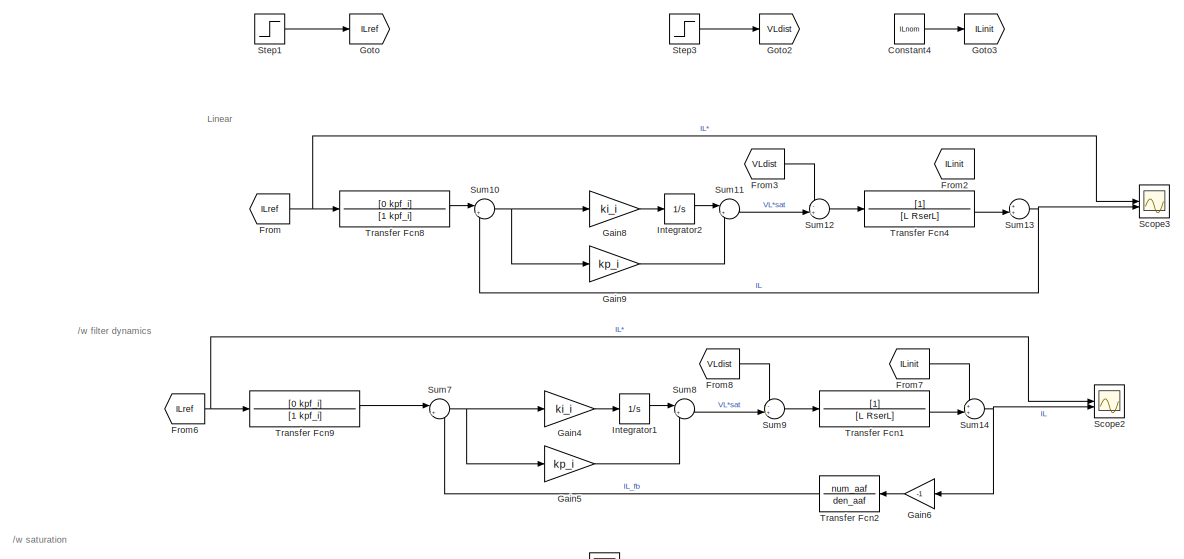
[diagram: root canvas - part 1/4, top left region]
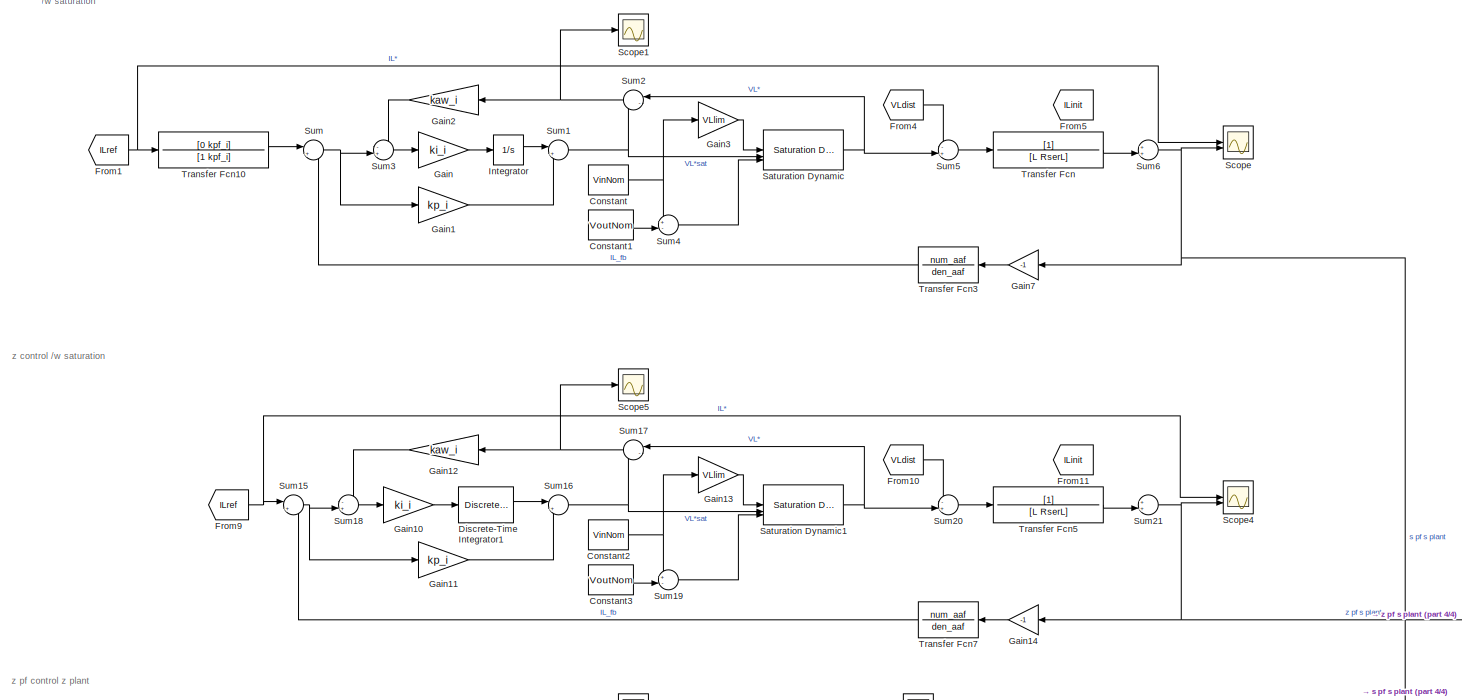
[diagram: root canvas - part 2/4, full width, middle band]
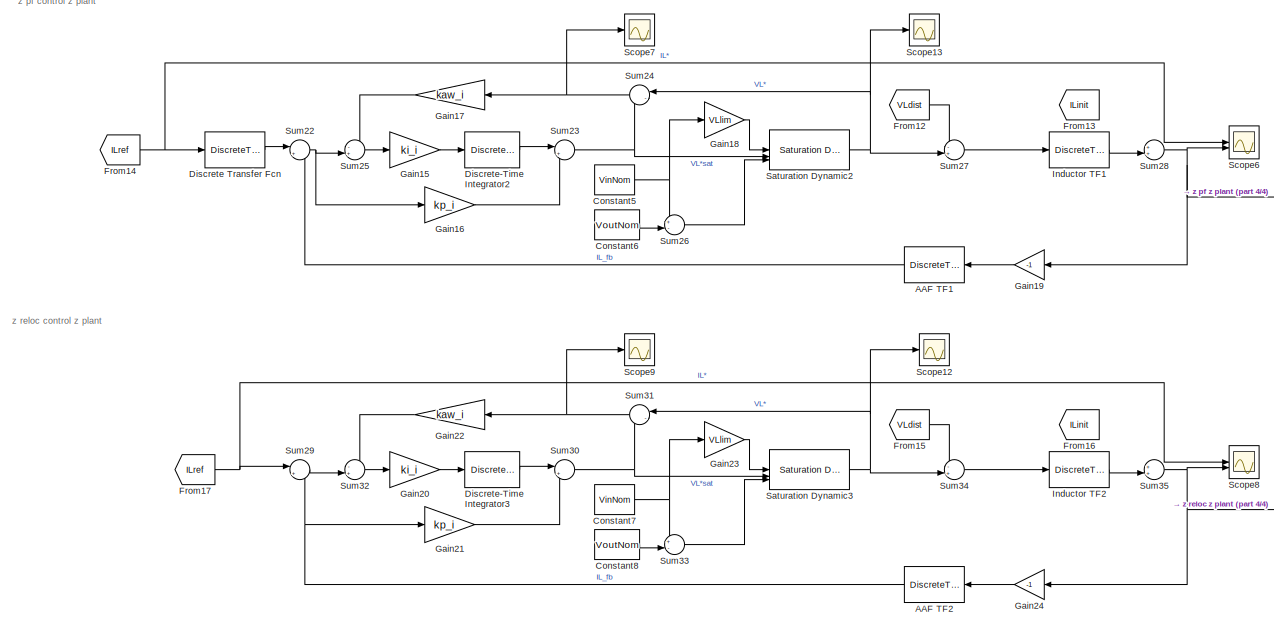
[diagram: root canvas - part 3/4, bottom center region]
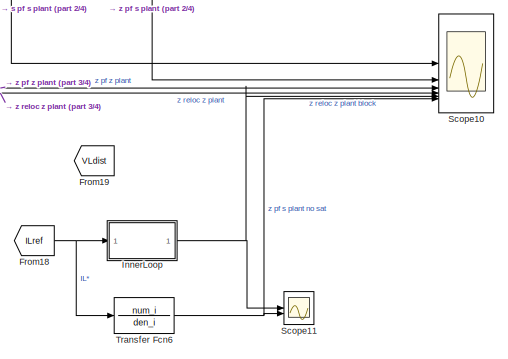
[diagram: root canvas - part 4/4, bottom right region]
MODEL slx_ea5bb810c5c6
KIND model
CONFIG AbsTol = auto
CONFIG EnableMultiTasking = off
CONFIG FixedStep = Tsw
CONFIG MaxStep = auto
CONFIG MinStep = auto
CONFIG RelTol = 1e-3
CONFIG SampleTimeConstraint = Unconstrained
CONFIG SolverName = FixedStepAuto
CONFIG StartTime = 0.0
CONFIG StopTime = Tsim_inLoop
BLOCK [DiscreteTransferFcn] AAF TF1
  Commented = on
  Denominator = zden_aaf
  InputPortMap = u0
  NameLocation = top
  Numerator = znum_aaf
BLOCK [DiscreteTransferFcn] AAF TF2
  Denominator = zden_aaf
  InputPortMap = u0
  NameLocation = top
  Numerator = znum_aaf
BLOCK [Constant] Constant
  Commented = on
  Value = VinNom
BLOCK [Constant] Constant1
  Commented = on
  Value = VoutNom
BLOCK [Constant] Constant2
  Value = VinNom
BLOCK [Constant] Constant3
  Value = VoutNom
BLOCK [Constant] Constant4
  SampleTime = -1
  Value = ILnom
BLOCK [Constant] Constant5
  Commented = on
  Value = VinNom
BLOCK [Constant] Constant6
  Commented = on
  Value = VoutNom
BLOCK [Constant] Constant7
  Value = VinNom
BLOCK [Constant] Constant8
  Value = VoutNom
BLOCK [DiscreteTransferFcn] Discrete Transfer Fcn
  Commented = on
  Denominator = zden_pf_i
  InputPortMap = u0
  Numerator = znum_pf_i
BLOCK [DiscreteIntegrator] Discrete-Time Integrator1
  ICPrevOutput = DiscIntNeverNeededParam
  ICPrevScaledInput = DiscIntNeverNeededParam
  InitialConditionSetting = Auto
  IntegratorMethod = Integration: Trapezoidal
  SampleTime = Tsw
BLOCK [DiscreteIntegrator] Discrete-Time Integrator2
  Commented = on
  ICPrevOutput = DiscIntNeverNeededParam
  ICPrevScaledInput = DiscIntNeverNeededParam
  InitialConditionSetting = Auto
  IntegratorMethod = Integration: Trapezoidal
  SampleTime = Tsw
BLOCK [DiscreteIntegrator] Discrete-Time Integrator3
  ICPrevOutput = DiscIntNeverNeededParam
  ICPrevScaledInput = DiscIntNeverNeededParam
  InitialConditionSetting = Auto
  IntegratorMethod = Integration: Trapezoidal
  SampleTime = Tsw
BLOCK [From] From
  Commented = on
  GotoTag = ILref
BLOCK [From] From1
  Commented = on
  GotoTag = ILref
BLOCK [From] From10
  GotoTag = VLdist
BLOCK [From] From11
  GotoTag = ILinit
BLOCK [From] From12
  Commented = on
  GotoTag = VLdist
BLOCK [From] From13
  Commented = on
  GotoTag = ILinit
BLOCK [From] From14
  Commented = on
  GotoTag = ILref
BLOCK [From] From15
  GotoTag = VLdist
BLOCK [From] From16
  GotoTag = ILinit
BLOCK [From] From17
  GotoTag = ILref
BLOCK [From] From18
  GotoTag = ILref
BLOCK [From] From19
  GotoTag = VLdist
BLOCK [From] From2
  Commented = on
  GotoTag = ILinit
BLOCK [From] From3
  Commented = on
  GotoTag = VLdist
BLOCK [From] From4
  Commented = on
  GotoTag = VLdist
BLOCK [From] From5
  Commented = on
  GotoTag = ILinit
BLOCK [From] From6
  Commented = on
  GotoTag = ILref
BLOCK [From] From7
  Commented = on
  GotoTag = ILinit
BLOCK [From] From8
  Commented = on
  GotoTag = VLdist
BLOCK [From] From9
  GotoTag = ILref
BLOCK [Gain] Gain
  Commented = on
  Gain = ki_i
BLOCK [Gain] Gain1
  Commented = on
  Gain = kp_i
BLOCK [Gain] Gain10
  Gain = ki_i
BLOCK [Gain] Gain11
  Gain = kp_i
BLOCK [Gain] Gain12
  Gain = kaw_i
  NameLocation = top
BLOCK [Gain] Gain13
  Gain = VLlim
BLOCK [Gain] Gain14
  Gain = -1
  NameLocation = top
BLOCK [Gain] Gain15
  Commented = on
  Gain = ki_i
BLOCK [Gain] Gain16
  Commented = on
  Gain = kp_i
BLOCK [Gain] Gain17
  Commented = on
  Gain = kaw_i
  NameLocation = top
BLOCK [Gain] Gain18
  Commented = on
  Gain = VLlim
BLOCK [Gain] Gain19
  Commented = on
  Gain = -1
  NameLocation = top
BLOCK [Gain] Gain2
  Commented = on
  Gain = kaw_i
  NameLocation = top
BLOCK [Gain] Gain20
  Gain = ki_i
BLOCK [Gain] Gain21
  Gain = kp_i
BLOCK [Gain] Gain22
  Gain = kaw_i
  NameLocation = top
BLOCK [Gain] Gain23
  Gain = VLlim
BLOCK [Gain] Gain24
  Gain = -1
  NameLocation = top
BLOCK [Gain] Gain3
  Commented = on
  Gain = VLlim
BLOCK [Gain] Gain4
  Commented = on
  Gain = ki_i
BLOCK [Gain] Gain5
  Commented = on
  Gain = kp_i
BLOCK [Gain] Gain6
  Commented = on
  Gain = -1
  NameLocation = top
BLOCK [Gain] Gain7
  Commented = on
  Gain = -1
  NameLocation = top
BLOCK [Gain] Gain8
  Commented = on
  Gain = ki_i
BLOCK [Gain] Gain9
  Commented = on
  Gain = kp_i
BLOCK [Goto] Goto
  GotoTag = ILref
BLOCK [Goto] Goto2
  GotoTag = VLdist
BLOCK [Goto] Goto3
  GotoTag = ILinit
BLOCK [DiscreteTransferFcn] Inductor TF1
  Commented = on
  Denominator = zden_plant_i
  InputPortMap = u0
  Numerator = znum_plant_i
BLOCK [DiscreteTransferFcn] Inductor TF2
  Denominator = zden_plant_i
  InputPortMap = u0
  Numerator = znum_plant_i
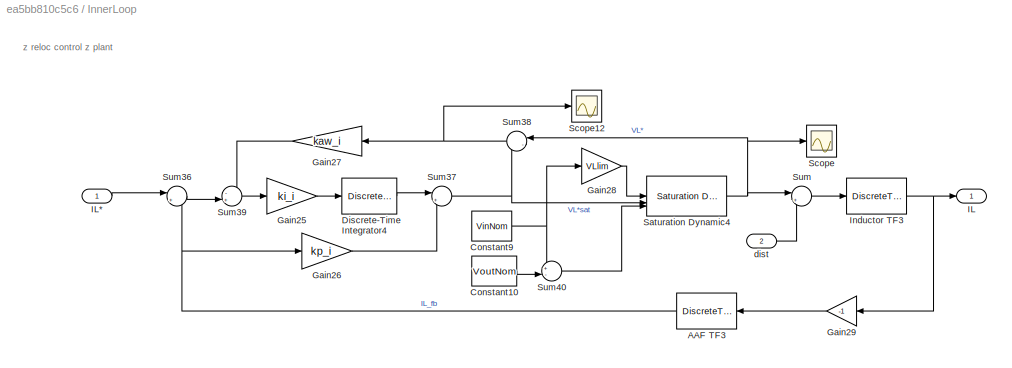
BLOCK [SubSystem] InnerLoop
  Commented = on
  PortSchema = {"entries":[{"content":{"sides":[{"content":{"connectorIds":["In1"]},"type":"ConnectorPlacement.EquallySpacedRectSide","uuid":"ea8557f0-2829-4e37-b4b3-547e1edede5f"},{"content":{"connectorIds":["Out1"],"side":"RIGHT"},"type":"ConnectorPlacement.EquallySpacedRectSide","uuid":"1f5eaae7-1846-4e2b-9076-d6e50ab32c3c"},{"content":{"connectorIds":["In2"],"side":"TOP"},"type":"ConnectorPlacement.EquallySp...<+371ch>
BLOCK [DiscreteTransferFcn] InnerLoop/AAF TF3
  Denominator = zden_aaf
  InputPortMap = u0
  NameLocation = top
  Numerator = znum_aaf
BLOCK [Constant] InnerLoop/Constant10
  Value = VoutNom
BLOCK [Constant] InnerLoop/Constant9
  Value = VinNom
BLOCK [DiscreteIntegrator] InnerLoop/Discrete-Time Integrator4
  ICPrevOutput = DiscIntNeverNeededParam
  ICPrevScaledInput = DiscIntNeverNeededParam
  InitialConditionSetting = Auto
  IntegratorMethod = Integration: Trapezoidal
  SampleTime = Tsw
BLOCK [Gain] InnerLoop/Gain25
  Gain = ki_i
BLOCK [Gain] InnerLoop/Gain26
  Gain = kp_i
BLOCK [Gain] InnerLoop/Gain27
  Gain = kaw_i
  NameLocation = top
BLOCK [Gain] InnerLoop/Gain28
  Gain = VLlim
BLOCK [Gain] InnerLoop/Gain29
  Gain = -1
  NameLocation = top
BLOCK [Outport] InnerLoop/IL
BLOCK [Inport] InnerLoop/IL*
BLOCK [DiscreteTransferFcn] InnerLoop/Inductor TF3
  Denominator = zden_plant_i
  InputPortMap = u0
  Numerator = znum_plant_i
BLOCK [Reference] InnerLoop/Saturation Dynamic4  REF=simulink/Discontinuities/Saturation
Dynamic
  SourceBlock = simulink/Discontinuities/Saturation\nDynamic
  SourceType = Saturation Dynamic
BLOCK [Scope] InnerLoop/Scope
  Floating = off
  NumInputPorts = 1
  ScopeSpecificationString = Simulink.scopes.TimeScopeBlockCfg('CurrentConfiguration', extmgr.ConfigurationSet(extmgr.Configuration('Core','General UI',true),extmgr.Configuration('Core','Source UI',true),extmgr.Configuration('Sources','WiredSimulink',true,'DataLoggingVariableName','ScopeData11'),extmgr.Configuration('Visuals','Time Domain',true,'SerializedDisplays',{struct('MinYLimReal','-2','MaxYLimReal','9','YLabelReal','',...<+1474ch>
BLOCK [Scope] InnerLoop/Scope12
  Floating = off
  NumInputPorts = 1
  ScopeSpecificationString = Simulink.scopes.TimeScopeBlockCfg('CurrentConfiguration', extmgr.ConfigurationSet(extmgr.Configuration('Core','General UI',true),extmgr.Configuration('Core','Source UI',true),extmgr.Configuration('Sources','WiredSimulink',true,'DataLoggingVariableName','ScopeData9'),extmgr.Configuration('Visuals','Time Domain',true,'SerializedDisplays',{struct('MinYLimReal','-0.000000000000000011','MaxYLimReal','0...<+1557ch>
BLOCK [Sum] InnerLoop/Sum
  Inputs = |+-
BLOCK [Sum] InnerLoop/Sum36
  Inputs = |+-
BLOCK [Sum] InnerLoop/Sum37
  Inputs = |+-
BLOCK [Sum] InnerLoop/Sum38
  Inputs = |-+
  NameLocation = top
BLOCK [Sum] InnerLoop/Sum39
  Inputs = -+|
BLOCK [Sum] InnerLoop/Sum40
  Inputs = +-|
BLOCK [Inport] InnerLoop/dist
  Port = 2
BLOCK [Integrator] Integrator
  Commented = on
BLOCK [Integrator] Integrator1
  Commented = on
BLOCK [Integrator] Integrator2
  Commented = on
BLOCK [Reference] Saturation Dynamic  REF=simulink/Discontinuities/Saturation
Dynamic
  Commented = on
  SourceBlock = simulink/Discontinuities/Saturation\nDynamic
  SourceType = Saturation Dynamic
BLOCK [Reference] Saturation Dynamic1  REF=simulink/Discontinuities/Saturation
Dynamic
  SourceBlock = simulink/Discontinuities/Saturation\nDynamic
  SourceType = Saturation Dynamic
BLOCK [Reference] Saturation Dynamic2  REF=simulink/Discontinuities/Saturation
Dynamic
  Commented = on
  SourceBlock = simulink/Discontinuities/Saturation\nDynamic
  SourceType = Saturation Dynamic
BLOCK [Reference] Saturation Dynamic3  REF=simulink/Discontinuities/Saturation
Dynamic
  SourceBlock = simulink/Discontinuities/Saturation\nDynamic
  SourceType = Saturation Dynamic
BLOCK [Scope] Scope
  Commented = on
  Floating = off
  NumInputPorts = 2
  ScopeSpecificationString = Simulink.scopes.TimeScopeBlockCfg('CurrentConfiguration', extmgr.ConfigurationSet(extmgr.Configuration('Core','General UI',true),extmgr.Configuration('Core','Source UI',true),extmgr.Configuration('Sources','WiredSimulink',true),extmgr.Configuration('Visuals','Time Domain',true,'SerializedDisplays',{struct('MinYLimReal','-3.81301','MaxYLimReal','12.88544','YLabelReal','','MinYLimMag','0.00000','Max...<+1403ch>
BLOCK [Scope] Scope1
  Commented = on
  Floating = off
  NumInputPorts = 1
  ScopeSpecificationString = Simulink.scopes.TimeScopeBlockCfg('CurrentConfiguration', extmgr.ConfigurationSet(extmgr.Configuration('Core','General UI',true),extmgr.Configuration('Core','Source UI',true),extmgr.Configuration('Sources','WiredSimulink',true,'DataLoggingVariableName','ScopeData1'),extmgr.Configuration('Visuals','Time Domain',true,'SerializedDisplays',{struct('MinYLimReal','-1.00000','MaxYLimReal','1.00000','YLab...<+1363ch>
BLOCK [Scope] Scope10
  Floating = off
  NumInputPorts = 6
  ScopeSpecificationString = Simulink.scopes.TimeScopeBlockCfg('CurrentConfiguration', extmgr.ConfigurationSet(extmgr.Configuration('Core','General UI',true),extmgr.Configuration('Core','Source UI',true),extmgr.Configuration('Sources','WiredSimulink',true,'DataLoggingVariableName','ScopeData7'),extmgr.Configuration('Visuals','Time Domain',true,'SerializedDisplays',{struct('MinYLimReal','-0.88612','MaxYLimReal','7.97505','YLab...<+1720ch>
BLOCK [Scope] Scope11
  Floating = off
  NumInputPorts = 2
  ScopeSpecificationString = Simulink.scopes.TimeScopeBlockCfg('CurrentConfiguration', extmgr.ConfigurationSet(extmgr.Configuration('Core','General UI',true),extmgr.Configuration('Core','Source UI',true),extmgr.Configuration('Sources','WiredSimulink',true,'DataLoggingVariableName','ScopeData8'),extmgr.Configuration('Visuals','Time Domain',true,'SerializedDisplays',{struct('MinYLimReal','-0.75084','MaxYLimReal','6.75757','YLab...<+1518ch>
BLOCK [Scope] Scope12
  Floating = off
  NumInputPorts = 1
  ScopeSpecificationString = Simulink.scopes.TimeScopeBlockCfg('CurrentConfiguration', extmgr.ConfigurationSet(extmgr.Configuration('Core','General UI',true),extmgr.Configuration('Core','Source UI',true),extmgr.Configuration('Sources','WiredSimulink',true,'DataLoggingVariableName','ScopeData10'),extmgr.Configuration('Visuals','Time Domain',true,'SerializedDisplays',{struct('MinYLimReal','-2','MaxYLimReal','9','YLabelReal','',...<+1471ch>
BLOCK [Scope] Scope13
  Commented = on
  Floating = off
  NumInputPorts = 1
  ScopeSpecificationString = Simulink.scopes.TimeScopeBlockCfg('CurrentConfiguration', extmgr.ConfigurationSet(extmgr.Configuration('Core','General UI',true),extmgr.Configuration('Core','Source UI',true),extmgr.Configuration('Sources','WiredSimulink',true,'DataLoggingVariableName','ScopeData12'),extmgr.Configuration('Visuals','Time Domain',true,'SerializedDisplays',{struct('MinYLimReal','-1.00000','MaxYLimReal','1.00000','YLa...<+1364ch>
BLOCK [Scope] Scope2
  Commented = on
  Floating = off
  NumInputPorts = 2
  ScopeSpecificationString = Simulink.scopes.TimeScopeBlockCfg('CurrentConfiguration', extmgr.ConfigurationSet(extmgr.Configuration('Core','General UI',true),extmgr.Configuration('Core','Source UI',true),extmgr.Configuration('Sources','WiredSimulink',true,'DataLoggingVariableName','ScopeData1'),extmgr.Configuration('Visuals','Time Domain',true,'SerializedDisplays',{struct('MinYLimReal','-4.45388','MaxYLimReal','13.22559','YLa...<+1442ch>
BLOCK [Scope] Scope3
  Commented = on
  Floating = off
  NumInputPorts = 2
  ScopeSpecificationString = Simulink.scopes.TimeScopeBlockCfg('CurrentConfiguration', extmgr.ConfigurationSet(extmgr.Configuration('Core','General UI',true),extmgr.Configuration('Core','Source UI',true),extmgr.Configuration('Sources','WiredSimulink',true,'DataLoggingVariableName','ScopeData2'),extmgr.Configuration('Visuals','Time Domain',true,'SerializedDisplays',{struct('MinYLimReal','-0.65629','MaxYLimReal','5.90662','YLab...<+1823ch>
BLOCK [Scope] Scope4
  Floating = off
  NumInputPorts = 2
  ScopeSpecificationString = Simulink.scopes.TimeScopeBlockCfg('CurrentConfiguration', extmgr.ConfigurationSet(extmgr.Configuration('Core','General UI',true),extmgr.Configuration('Core','Source UI',true),extmgr.Configuration('Sources','WiredSimulink',true,'DataLoggingVariableName','ScopeData1'),extmgr.Configuration('Visuals','Time Domain',true,'SerializedDisplays',{struct('MinYLimReal','-0.88618','MaxYLimReal','7.97564','YLab...<+1536ch>
BLOCK [Scope] Scope5
  Floating = off
  NumInputPorts = 1
  ScopeSpecificationString = Simulink.scopes.TimeScopeBlockCfg('CurrentConfiguration', extmgr.ConfigurationSet(extmgr.Configuration('Core','General UI',true),extmgr.Configuration('Core','Source UI',true),extmgr.Configuration('Sources','WiredSimulink',true,'DataLoggingVariableName','ScopeData2'),extmgr.Configuration('Visuals','Time Domain',true,'SerializedDisplays',{struct('MinYLimReal','-1.00000','MaxYLimReal','1.00000','YLab...<+1363ch>
BLOCK [Scope] Scope6
  Commented = on
  Floating = off
  NumInputPorts = 2
  ScopeSpecificationString = Simulink.scopes.TimeScopeBlockCfg('CurrentConfiguration', extmgr.ConfigurationSet(extmgr.Configuration('Core','General UI',true),extmgr.Configuration('Core','Source UI',true),extmgr.Configuration('Sources','WiredSimulink',true,'DataLoggingVariableName','ScopeData3'),extmgr.Configuration('Visuals','Time Domain',true,'SerializedDisplays',{struct('MinYLimReal','-0.625','MaxYLimReal','5.625','YLabelRe...<+1525ch>
BLOCK [Scope] Scope7
  Commented = on
  Floating = off
  NumInputPorts = 1
  ScopeSpecificationString = Simulink.scopes.TimeScopeBlockCfg('CurrentConfiguration', extmgr.ConfigurationSet(extmgr.Configuration('Core','General UI',true),extmgr.Configuration('Core','Source UI',true),extmgr.Configuration('Sources','WiredSimulink',true,'DataLoggingVariableName','ScopeData4'),extmgr.Configuration('Visuals','Time Domain',true,'SerializedDisplays',{struct('MinYLimReal','-1.00000','MaxYLimReal','1.00000','YLab...<+1363ch>
BLOCK [Scope] Scope8
  Floating = off
  NumInputPorts = 2
  ScopeSpecificationString = Simulink.scopes.TimeScopeBlockCfg('CurrentConfiguration', extmgr.ConfigurationSet(extmgr.Configuration('Core','General UI',true),extmgr.Configuration('Core','Source UI',true),extmgr.Configuration('Sources','WiredSimulink',true,'DataLoggingVariableName','ScopeData5'),extmgr.Configuration('Visuals','Time Domain',true,'SerializedDisplays',{struct('MinYLimReal','-0.625','MaxYLimReal','5.625','YLabelRe...<+1515ch>
BLOCK [Scope] Scope9
  Floating = off
  NumInputPorts = 1
  ScopeSpecificationString = Simulink.scopes.TimeScopeBlockCfg('CurrentConfiguration', extmgr.ConfigurationSet(extmgr.Configuration('Core','General UI',true),extmgr.Configuration('Core','Source UI',true),extmgr.Configuration('Sources','WiredSimulink',true,'DataLoggingVariableName','ScopeData6'),extmgr.Configuration('Visuals','Time Domain',true,'SerializedDisplays',{struct('MinYLimReal','-0.000000000000000009','MaxYLimReal','0...<+1557ch>
BLOCK [Step] Step1
  After = ILnom
  Time = Tsim_inLoop/4
BLOCK [Step] Step3
  After = VinNom/4
  Time = Tsim_inLoop/2
BLOCK [Sum] Sum
  Commented = on
  Inputs = |+-
BLOCK [Sum] Sum1
  Commented = on
  Inputs = |++
BLOCK [Sum] Sum10
  Commented = on
  Inputs = |+-
BLOCK [Sum] Sum11
  Commented = on
  Inputs = |++
BLOCK [Sum] Sum12
  Commented = on
  Inputs = -+|
BLOCK [Sum] Sum13
  Commented = on
  Inputs = ++|
BLOCK [Sum] Sum14
  Commented = on
  Inputs = ++|
BLOCK [Sum] Sum15
  Inputs = |+-
BLOCK [Sum] Sum16
  Inputs = |++
BLOCK [Sum] Sum17
  Inputs = |-+
  NameLocation = top
BLOCK [Sum] Sum18
  Inputs = -+|
BLOCK [Sum] Sum19
  Inputs = +-|
BLOCK [Sum] Sum2
  Commented = on
  Inputs = |-+
  NameLocation = top
BLOCK [Sum] Sum20
  Inputs = -+|
BLOCK [Sum] Sum21
  Inputs = ++|
BLOCK [Sum] Sum22
  Commented = on
  Inputs = |+-
BLOCK [Sum] Sum23
  Commented = on
  Inputs = |++
BLOCK [Sum] Sum24
  Commented = on
  Inputs = |-+
  NameLocation = top
BLOCK [Sum] Sum25
  Commented = on
  Inputs = -+|
BLOCK [Sum] Sum26
  Commented = on
  Inputs = +-|
BLOCK [Sum] Sum27
  Commented = on
  Inputs = -+|
BLOCK [Sum] Sum28
  Commented = on
  Inputs = ++|
BLOCK [Sum] Sum29
  Inputs = |+-
BLOCK [Sum] Sum3
  Commented = on
  Inputs = -+|
BLOCK [Sum] Sum30
  Inputs = |+-
BLOCK [Sum] Sum31
  Inputs = |-+
  NameLocation = top
BLOCK [Sum] Sum32
  Inputs = -+|
BLOCK [Sum] Sum33
  Inputs = +-|
BLOCK [Sum] Sum34
  Inputs = -+|
BLOCK [Sum] Sum35
  Inputs = ++|
BLOCK [Sum] Sum4
  Commented = on
  Inputs = +-|
BLOCK [Sum] Sum5
  Commented = on
  Inputs = -+|
BLOCK [Sum] Sum6
  Commented = on
  Inputs = ++|
BLOCK [Sum] Sum7
  Commented = on
  Inputs = |+-
BLOCK [Sum] Sum8
  Commented = on
  Inputs = |++
BLOCK [Sum] Sum9
  Commented = on
  Inputs = -+|
BLOCK [TransferFcn] Transfer Fcn
  Commented = on
  Denominator = [L RserL]
BLOCK [TransferFcn] Transfer Fcn1
  Commented = on
  Denominator = [L RserL]
BLOCK [TransferFcn] Transfer Fcn10
  Commented = on
  Denominator = [1 kpf_i]
  Numerator = [0 kpf_i]
BLOCK [TransferFcn] Transfer Fcn2
  Commented = on
  Denominator = den_aaf
  NameLocation = top
  Numerator = num_aaf
BLOCK [TransferFcn] Transfer Fcn3
  Commented = on
  Denominator = den_aaf
  NameLocation = top
  Numerator = num_aaf
BLOCK [TransferFcn] Transfer Fcn4
  Commented = on
  Denominator = [L RserL]
BLOCK [TransferFcn] Transfer Fcn5
  Denominator = [L RserL]
BLOCK [TransferFcn] Transfer Fcn6
  Commented = on
  Denominator = den_i
  Numerator = num_i
BLOCK [TransferFcn] Transfer Fcn7
  Denominator = den_aaf
  NameLocation = top
  Numerator = num_aaf
BLOCK [TransferFcn] Transfer Fcn8
  Commented = on
  Denominator = [1 kpf_i]
  Numerator = [0 kpf_i]
BLOCK [TransferFcn] Transfer Fcn9
  Commented = on
  Denominator = [1 kpf_i]
  Numerator = [0 kpf_i]
ANNOTATION (root): /w filter dynamics
ANNOTATION (root): /w saturation
ANNOTATION (root): Linear
ANNOTATION (root): z control /w saturation
ANNOTATION (root): z pf control z plant
ANNOTATION (root): z reloc control z plant
ANNOTATION InnerLoop: z reloc control z plant
LINE AAF TF1:1 -> Sum22:2
NET AAF TF2:1 -> Gain21:1, Sum29:2
LINE Constant1:1 -> Sum4:2
NET Constant2:1 -> Gain13:1, Sum19:1
LINE Constant3:1 -> Sum19:2
LINE Constant4:1 -> Goto3:1
NET Constant5:1 -> Gain18:1, Sum26:1
LINE Constant6:1 -> Sum26:2
NET Constant7:1 -> Gain23:1, Sum33:1
LINE Constant8:1 -> Sum33:2
NET Constant:1 -> Gain3:1, Sum4:1
LINE Discrete Transfer Fcn:1 -> Sum22:1
LINE Discrete-Time Integrator1:1 -> Sum16:1
LINE Discrete-Time Integrator2:1 -> Sum23:1
LINE Discrete-Time Integrator3:1 -> Sum30:1
LINE From10:1 -> Sum20:1
LINE From12:1 -> Sum27:1
NET From14:1 -> Discrete Transfer Fcn:1, Scope6:1
LINE From15:1 -> Sum34:1
NET From17:1 -> Scope8:1, Sum29:1
NET From18:1 -> InnerLoop:1, Transfer Fcn6:1
NET From1:1 -> Scope:1, Transfer Fcn10:1
LINE From3:1 -> Sum12:1
LINE From4:1 -> Sum5:1
NET From6:1 -> Scope2:1, Transfer Fcn9:1
LINE From7:1 -> Sum14:1
LINE From8:1 -> Sum9:1
NET From9:1 -> Scope4:1, Sum15:1
NET From:1 -> Scope3:1, Transfer Fcn8:1
LINE Gain10:1 -> Discrete-Time Integrator1:1
LINE Gain11:1 -> Sum16:2
LINE Gain12:1 -> Sum18:1
LINE Gain13:1 -> Saturation Dynamic1:1
LINE Gain14:1 -> Transfer Fcn7:1
LINE Gain15:1 -> Discrete-Time Integrator2:1
LINE Gain16:1 -> Sum23:2
LINE Gain17:1 -> Sum25:1
LINE Gain18:1 -> Saturation Dynamic2:1
LINE Gain19:1 -> AAF TF1:1
LINE Gain1:1 -> Sum1:2
LINE Gain20:1 -> Discrete-Time Integrator3:1
LINE Gain21:1 -> Sum30:2
LINE Gain22:1 -> Sum32:1
LINE Gain23:1 -> Saturation Dynamic3:1
LINE Gain24:1 -> AAF TF2:1
LINE Gain2:1 -> Sum3:1
LINE Gain3:1 -> Saturation Dynamic:1
LINE Gain4:1 -> Integrator1:1
LINE Gain5:1 -> Sum8:2
LINE Gain6:1 -> Transfer Fcn2:1
LINE Gain7:1 -> Transfer Fcn3:1
LINE Gain8:1 -> Integrator2:1
LINE Gain9:1 -> Sum11:2
LINE Gain:1 -> Integrator:1
LINE Inductor TF1:1 -> Sum28:2
LINE Inductor TF2:1 -> Sum35:2
NET InnerLoop/AAF TF3:1 -> InnerLoop/Gain26:1, InnerLoop/Sum36:2
LINE InnerLoop/Constant10:1 -> InnerLoop/Sum40:2
NET InnerLoop/Constant9:1 -> InnerLoop/Gain28:1, InnerLoop/Sum40:1
LINE InnerLoop/Discrete-Time Integrator4:1 -> InnerLoop/Sum37:1
LINE InnerLoop/Gain25:1 -> InnerLoop/Discrete-Time Integrator4:1
LINE InnerLoop/Gain26:1 -> InnerLoop/Sum37:2
LINE InnerLoop/Gain27:1 -> InnerLoop/Sum39:1
LINE InnerLoop/Gain28:1 -> InnerLoop/Saturation Dynamic4:1
LINE InnerLoop/Gain29:1 -> InnerLoop/AAF TF3:1
LINE InnerLoop/IL*:1 -> InnerLoop/Sum36:1
NET InnerLoop/Inductor TF3:1 -> InnerLoop/Gain29:1, InnerLoop/IL:1
NET InnerLoop/Saturation Dynamic4:1 -> InnerLoop/Scope:1, InnerLoop/Sum38:1, InnerLoop/Sum:1
LINE InnerLoop/Sum36:1 -> InnerLoop/Sum39:2
NET InnerLoop/Sum37:1 -> InnerLoop/Saturation Dynamic4:2, InnerLoop/Sum38:2
NET InnerLoop/Sum38:1 -> InnerLoop/Gain27:1, InnerLoop/Scope12:1
LINE InnerLoop/Sum39:1 -> InnerLoop/Gain25:1
LINE InnerLoop/Sum40:1 -> InnerLoop/Saturation Dynamic4:3
LINE InnerLoop/Sum:1 -> InnerLoop/Inductor TF3:1
LINE InnerLoop/dist:1 -> InnerLoop/Sum:2
NET InnerLoop:1 -> Scope10:5, Scope11:1
LINE Integrator1:1 -> Sum8:1
LINE Integrator2:1 -> Sum11:1
LINE Integrator:1 -> Sum1:1
NET Saturation Dynamic1:1 -> Sum17:1, Sum20:2
NET Saturation Dynamic2:1 -> Scope13:1, Sum24:1, Sum27:2
NET Saturation Dynamic3:1 -> Scope12:1, Sum31:1, Sum34:2
NET Saturation Dynamic:1 -> Sum2:1, Sum5:2
LINE Step1:1 -> Goto:1
LINE Step3:1 -> Goto2:1
NET Sum10:1 -> Gain8:1, Gain9:1
LINE Sum11:1 -> Sum12:2
LINE Sum12:1 -> Transfer Fcn4:1
NET Sum13:1 -> Scope3:2, Sum10:2
NET Sum14:1 -> Gain6:1, Scope2:2
NET Sum15:1 -> Gain11:1, Sum18:2
NET Sum16:1 -> Saturation Dynamic1:2, Sum17:2
NET Sum17:1 -> Gain12:1, Scope5:1
LINE Sum18:1 -> Gain10:1
LINE Sum19:1 -> Saturation Dynamic1:3
NET Sum1:1 -> Saturation Dynamic:2, Sum2:2
LINE Sum20:1 -> Transfer Fcn5:1
NET Sum21:1 -> Gain14:1, Scope10:2, Scope4:2
NET Sum22:1 -> Gain16:1, Sum25:2
NET Sum23:1 -> Saturation Dynamic2:2, Sum24:2
NET Sum24:1 -> Gain17:1, Scope7:1
LINE Sum25:1 -> Gain15:1
LINE Sum26:1 -> Saturation Dynamic2:3
LINE Sum27:1 -> Inductor TF1:1
NET Sum28:1 -> Gain19:1, Scope10:3, Scope6:2
LINE Sum29:1 -> Sum32:2
NET Sum2:1 -> Gain2:1, Scope1:1
NET Sum30:1 -> Saturation Dynamic3:2, Sum31:2
NET Sum31:1 -> Gain22:1, Scope9:1
LINE Sum32:1 -> Gain20:1
LINE Sum33:1 -> Saturation Dynamic3:3
LINE Sum34:1 -> Inductor TF2:1
NET Sum35:1 -> Gain24:1, Scope10:4, Scope8:2
LINE Sum3:1 -> Gain:1
LINE Sum4:1 -> Saturation Dynamic:3
LINE Sum5:1 -> Transfer Fcn:1
NET Sum6:1 -> Gain7:1, Scope10:1, Scope:2
NET Sum7:1 -> Gain4:1, Gain5:1
LINE Sum8:1 -> Sum9:2
LINE Sum9:1 -> Transfer Fcn1:1
NET Sum:1 -> Gain1:1, Sum3:2
LINE Transfer Fcn10:1 -> Sum:1
LINE Transfer Fcn1:1 -> Sum14:2
LINE Transfer Fcn2:1 -> Sum7:2
LINE Transfer Fcn3:1 -> Sum:2
LINE Transfer Fcn4:1 -> Sum13:2
LINE Transfer Fcn5:1 -> Sum21:2
NET Transfer Fcn6:1 -> Scope10:6, Scope11:2
LINE Transfer Fcn7:1 -> Sum15:2
LINE Transfer Fcn8:1 -> Sum10:1
LINE Transfer Fcn9:1 -> Sum7:1
LINE Transfer Fcn:1 -> Sum6:2
note: NET lines group one-source signal fan-out (src -> all destinations, sorted); 1:1 wires keep LINE
